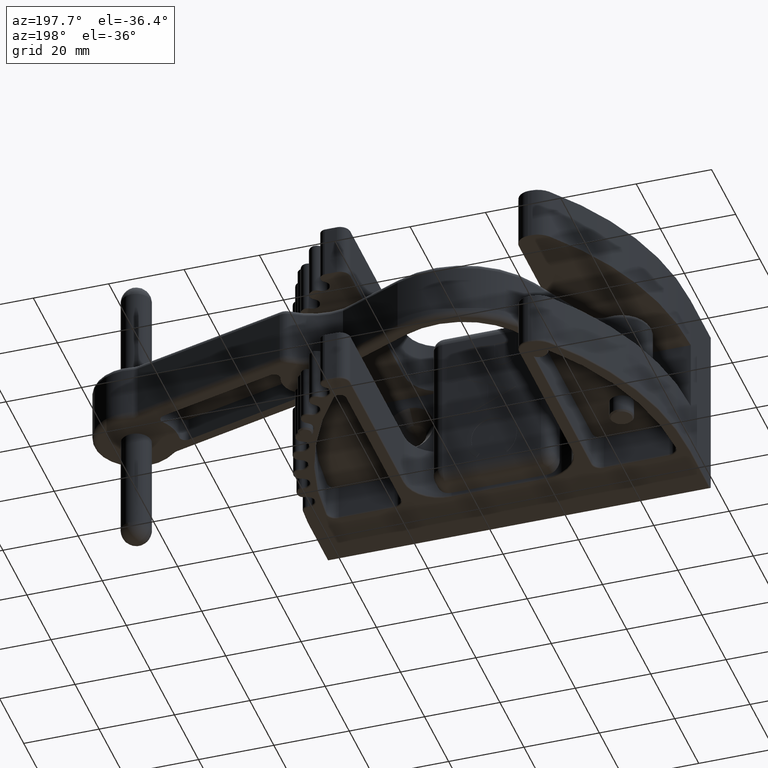
[diagram: clean part render]
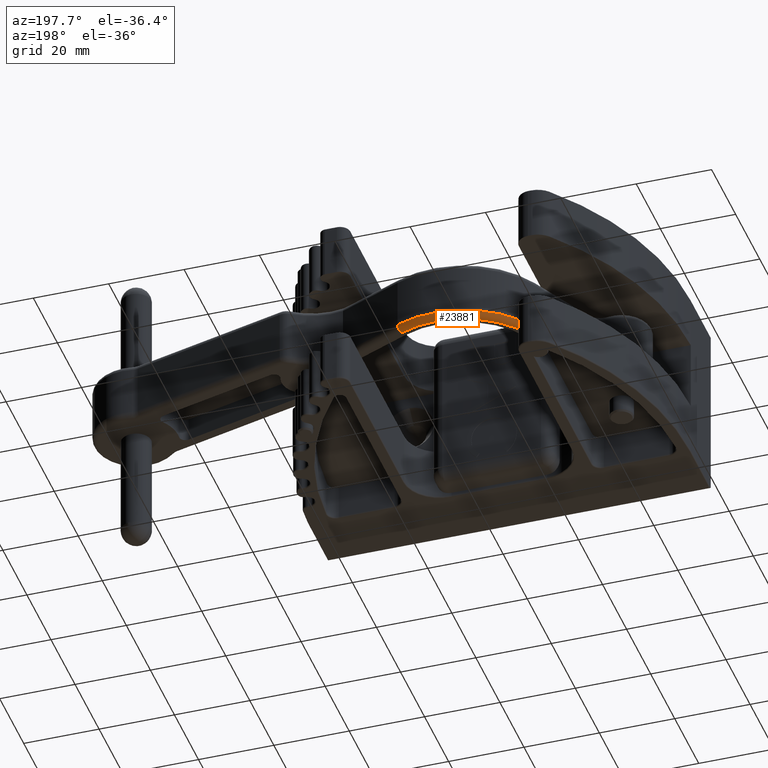
[diagram: same view with one face highlighted and labeled with its STEP entity id]
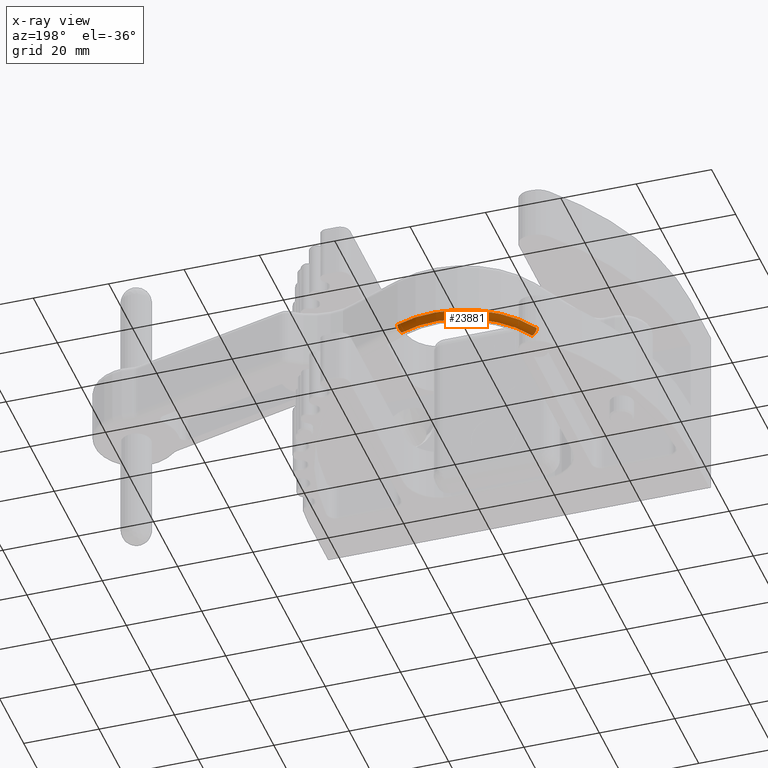
[diagram: x-ray of the same camera — body ghosted, the highlighted face saturated]
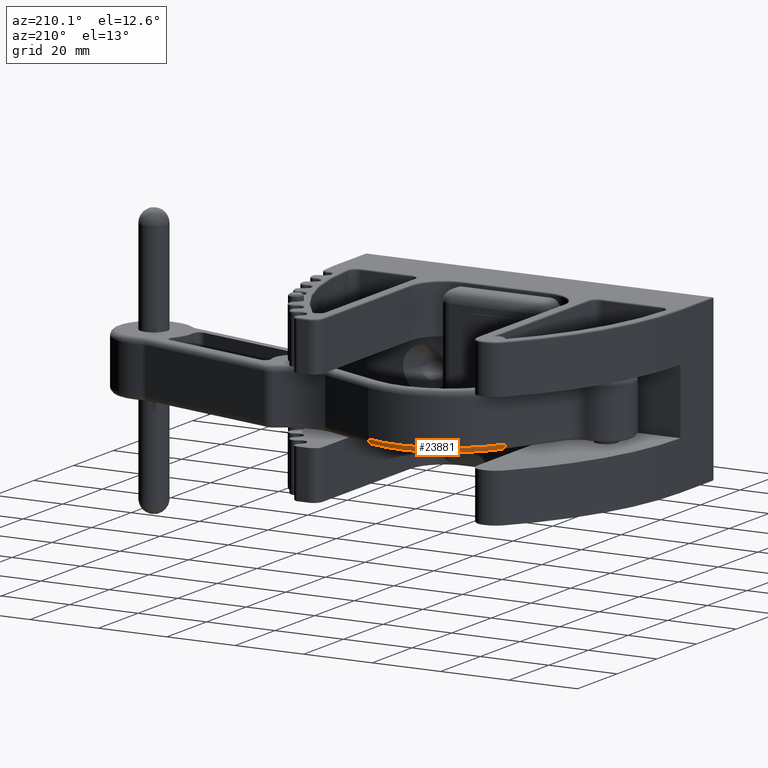
[diagram: same view with one face highlighted and labeled with its STEP entity id]
A machine part, auxiliary view. The second image highlights one B-rep face of the part: STEP entity #23881.
The next image is the same camera in x-ray: the body ghosted, the highlighted face saturated — about 4% of this face is hidden behind the body in this view.
A second angle (auxiliary view) of the same face is appended — the face is thin or edge-on in the first view.
In plain terms, the highlighted toroidal blend (fillet) surface has major radius 24.0438 mm and minor (blend) radius 1.5875 mm.
Its self-contained STEP definition (entity closure, byte-faithful):
#162 = CARTESIAN_POINT ( 'NONE',  ( 1.702915872735392400, -0.6177902567614397300, -0.3215000000000000600 ) ) ;
#179 = CIRCLE ( 'NONE', #17419, 0.06250000000000013900 ) ;
#215 = AXIS2_PLACEMENT_3D ( 'NONE', #10903, #26864, #13208 ) ;
#1815 = CIRCLE ( 'NONE', #4768, 1.009105567046601100 ) ;
#2275 = ORIENTED_EDGE ( 'NONE', *, *, #22273, .F. ) ;
#2472 = DIRECTION ( 'NONE',  ( -1.000000000000000000, 0.0000000000000000000, 0.0000000000000000000 ) ) ;
#3570 = TOROIDAL_SURFACE ( 'NONE', #28714, 0.9466055670465994800, 0.06250000000000000000 ) ;
#4112 = VERTEX_POINT ( 'NONE', #26731 ) ;
#4768 = AXIS2_PLACEMENT_3D ( 'NONE', #25287, #11603, #27568 ) ;
#5799 = ORIENTED_EDGE ( 'NONE', *, *, #10972, .F. ) ;
#6825 = DIRECTION ( 'NONE',  ( -1.000000000000000000, -5.659799424266695200E-072, -3.761581922631320000E-036 ) ) ;
#8716 = VERTEX_POINT ( 'NONE', #22914 ) ;
#9143 = VERTEX_POINT ( 'NONE', #20437 ) ;
#9973 = CARTESIAN_POINT ( 'NONE',  ( 1.842053661816029300, 0.3185338191937639500, -0.2590000000000000100 ) ) ;
#10903 = CARTESIAN_POINT ( 'NONE',  ( 0.7758938076189186800, -0.4262382002577229700, -0.2590000000000000100 ) ) ;
#10972 = EDGE_CURVE ( 'NONE', #4112, #13721, #17785, .T. ) ;
#11603 = DIRECTION ( 'NONE',  ( -3.761581922631320000E-036, 1.504632769052528000E-036, 1.000000000000000000 ) ) ;
#12179 = CIRCLE ( 'NONE', #215, 0.06250000000000015300 ) ;
#12250 = DIRECTION ( 'NONE',  ( -0.1469860245115039200, -0.9891385689570008100, 0.0000000000000000000 ) ) ;
#13149 = ORIENTED_EDGE ( 'NONE', *, *, #22014, .F. ) ;
#13208 = DIRECTION ( 'NONE',  ( 0.9793118669360600900, -0.2023567821403782200, 0.0000000000000000000 ) ) ;
#13721 = VERTEX_POINT ( 'NONE', #23242 ) ;
#15007 = FACE_OUTER_BOUND ( 'NONE', #16691, .T. ) ;
#15880 = EDGE_CURVE ( 'NONE', #8716, #13721, #179, .T. ) ;
#16148 = DIRECTION ( 'NONE',  ( 3.761581922631320000E-036, -1.504632769052528000E-036, -1.000000000000000000 ) ) ;
#16691 = EDGE_LOOP ( 'NONE', ( #21968, #5799, #13149, #2275 ) ) ;
#17419 = AXIS2_PLACEMENT_3D ( 'NONE', #9973, #25921, #12250 ) ;
#17785 = CIRCLE ( 'NONE', #18243, 0.9466055670466011500 ) ;
#18243 = AXIS2_PLACEMENT_3D ( 'NONE', #162, #16148, #2472 ) ;
#20437 = CARTESIAN_POINT ( 'NONE',  ( 0.7146868159354130600, -0.4135909013739492200, -0.2589999999999999000 ) ) ;
#20492 = CARTESIAN_POINT ( 'NONE',  ( 1.702915872735392400, -0.6177902567614397300, -0.2590000000000000100 ) ) ;
#21968 = ORIENTED_EDGE ( 'NONE', *, *, #15880, .T. ) ;
#22014 = EDGE_CURVE ( 'NONE', #9143, #4112, #12179, .T. ) ;
#22273 = EDGE_CURVE ( 'NONE', #8716, #9143, #1815, .T. ) ;
#22914 = CARTESIAN_POINT ( 'NONE',  ( 1.851240288347999700, 0.3803549797535787400, -0.2589999999999999000 ) ) ;
#23242 = CARTESIAN_POINT ( 'NONE',  ( 1.842053661816029300, 0.3185338191937639500, -0.3215000000000000600 ) ) ;
#23881 = ADVANCED_FACE ( 'NONE', ( #15007 ), #3570, .T. ) ;
#25287 = CARTESIAN_POINT ( 'NONE',  ( 1.702915872735392400, -0.6177902567614397300, -0.2590000000000000100 ) ) ;
#25921 = DIRECTION ( 'NONE',  ( -0.9891385689570009200, 0.1469860245115044200, 5.642372883946966000E-036 ) ) ;
#26731 = CARTESIAN_POINT ( 'NONE',  ( 0.7758938076189186800, -0.4262382002577229700, -0.3215000000000000600 ) ) ;
#26864 = DIRECTION ( 'NONE',  ( -0.2023567821403776400, -0.9793118669360604300, -1.504632769052523700E-036 ) ) ;
#27568 = DIRECTION ( 'NONE',  ( -1.000000000000000000, 1.759678326895770700E-015, 0.0000000000000000000 ) ) ;
#28714 = AXIS2_PLACEMENT_3D ( 'NONE', #20492, #29595, #6825 ) ;
#29595 = DIRECTION ( 'NONE',  ( 3.761581922631320000E-036, -1.504632769052528000E-036, -1.000000000000000000 ) ) ;